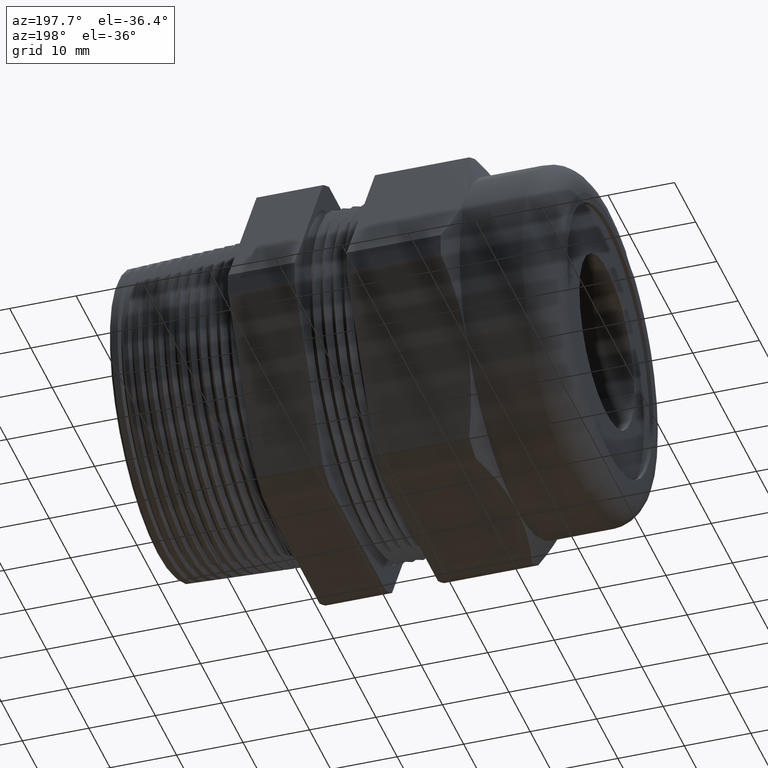
[diagram: clean part render]
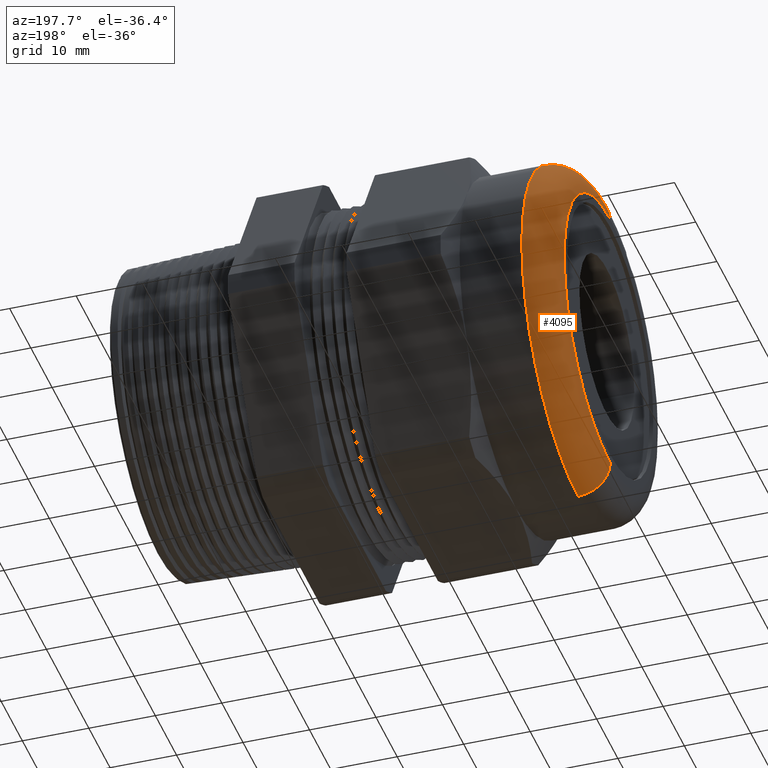
[diagram: same view with one face highlighted and labeled with its STEP entity id]
A machine part, auxiliary view. The second image highlights one B-rep face of the part: STEP entity #4095.
In plain terms, the highlighted toroidal blend (fillet) surface has major radius 21.7068 mm and minor (blend) radius 4.8362 mm.
Its self-contained STEP definition (entity closure, byte-faithful):
#900 = EDGE_CURVE ( 'NONE', #4100, #4101, #1808, .T. ) ;
#901 = ORIENTED_EDGE ( 'NONE', *, *, #902, .F. ) ;
#902 = EDGE_CURVE ( 'NONE', #4101, #4088, #1803, .T. ) ;
#903 = ORIENTED_EDGE ( 'NONE', *, *, #900, .F. ) ;
#921 = EDGE_CURVE ( 'NONE', #4097, #4088, #1787, .T. ) ;
#1748 = CARTESIAN_POINT ( 'NONE',  ( -1.699599999999999600, 0.0000000000000000000, -0.8545999999999998000 ) ) ;
#1783 = DIRECTION ( 'NONE',  ( 0.0000000000000000000, 1.224646799147353500E-016, 1.000000000000000000 ) ) ;
#1784 = DIRECTION ( 'NONE',  ( 0.0000000000000000000, 1.000000000000000000, -1.224646799147353200E-016 ) ) ;
#1785 = CARTESIAN_POINT ( 'NONE',  ( -1.699599999999999600, 1.046583154551327900E-016, 0.8545999999999998000 ) ) ;
#1786 = AXIS2_PLACEMENT_3D ( 'NONE', #1785, #1784, #1783 ) ;
#1787 = CIRCLE ( 'NONE', #1786, 0.1904000000000001000 ) ;
#1799 = DIRECTION ( 'NONE',  ( 0.0000000000000000000, 0.0000000000000000000, -1.000000000000000000 ) ) ;
#1800 = DIRECTION ( 'NONE',  ( 1.000000000000000000, 0.0000000000000000000, 0.0000000000000000000 ) ) ;
#1801 = CARTESIAN_POINT ( 'NONE',  ( -1.699599999999999600, 0.0000000000000000000, 0.0000000000000000000 ) ) ;
#1802 = AXIS2_PLACEMENT_3D ( 'NONE', #1801, #1800, #1799 ) ;
#1803 = CIRCLE ( 'NONE', #1802, 1.044999999999999900 ) ;
#1805 = DIRECTION ( 'NONE',  ( 0.0000000000000000000, 0.0000000000000000000, -1.000000000000000000 ) ) ;
#1806 = DIRECTION ( 'NONE',  ( 0.0000000000000000000, -1.000000000000000000, 0.0000000000000000000 ) ) ;
#1807 = AXIS2_PLACEMENT_3D ( 'NONE', #1748, #1806, #1805 ) ;
#1808 = CIRCLE ( 'NONE', #1807, 0.1904000000000001000 ) ;
#3217 = DIRECTION ( 'NONE',  ( 0.0000000000000000000, 0.0000000000000000000, -1.000000000000000000 ) ) ;
#3218 = DIRECTION ( 'NONE',  ( -1.000000000000000000, 0.0000000000000000000, 0.0000000000000000000 ) ) ;
#3219 = CARTESIAN_POINT ( 'NONE',  ( -1.889999999999999700, 0.0000000000000000000, 0.0000000000000000000 ) ) ;
#3220 = AXIS2_PLACEMENT_3D ( 'NONE', #3219, #3218, #3217 ) ;
#3221 = CIRCLE ( 'NONE', #3220, 0.8545999999999998000 ) ;
#3222 = CARTESIAN_POINT ( 'NONE',  ( -1.889999999999999700, 0.0000000000000000000, -0.8545999999999998000 ) ) ;
#3223 = CARTESIAN_POINT ( 'NONE',  ( -1.889999999999999700, 1.163169529830156000E-016, 0.8545999999999998000 ) ) ;
#3228 = DIRECTION ( 'NONE',  ( 0.0000000000000000000, 0.0000000000000000000, -1.000000000000000000 ) ) ;
#3229 = DIRECTION ( 'NONE',  ( 1.000000000000000000, 0.0000000000000000000, 0.0000000000000000000 ) ) ;
#3230 = AXIS2_PLACEMENT_3D ( 'NONE', #3233, #3229, #3228 ) ;
#3231 = TOROIDAL_SURFACE ( 'NONE', #3230, 0.8545999999999998000, 0.1904000000000001500 ) ;
#3233 = CARTESIAN_POINT ( 'NONE',  ( -1.699599999999999600, 0.0000000000000000000, 0.0000000000000000000 ) ) ;
#3234 = FACE_OUTER_BOUND ( 'NONE', #4094, .T. ) ;
#3242 = CARTESIAN_POINT ( 'NONE',  ( -1.699599999999999600, 0.0000000000000000000, 1.044999999999999900 ) ) ;
#3285 = CARTESIAN_POINT ( 'NONE',  ( -1.699599999999999600, 1.279755905108984100E-016, -1.044999999999999900 ) ) ;
#4088 = VERTEX_POINT ( 'NONE', #3242 ) ;
#4094 = EDGE_LOOP ( 'NONE', ( #4099, #4102, #901, #903 ) ) ;
#4095 = ADVANCED_FACE ( 'NONE', ( #3234 ), #3231, .T. ) ;
#4097 = VERTEX_POINT ( 'NONE', #3223 ) ;
#4098 = EDGE_CURVE ( 'NONE', #4097, #4100, #3221, .T. ) ;
#4099 = ORIENTED_EDGE ( 'NONE', *, *, #4098, .F. ) ;
#4100 = VERTEX_POINT ( 'NONE', #3222 ) ;
#4101 = VERTEX_POINT ( 'NONE', #3285 ) ;
#4102 = ORIENTED_EDGE ( 'NONE', *, *, #921, .T. ) ;